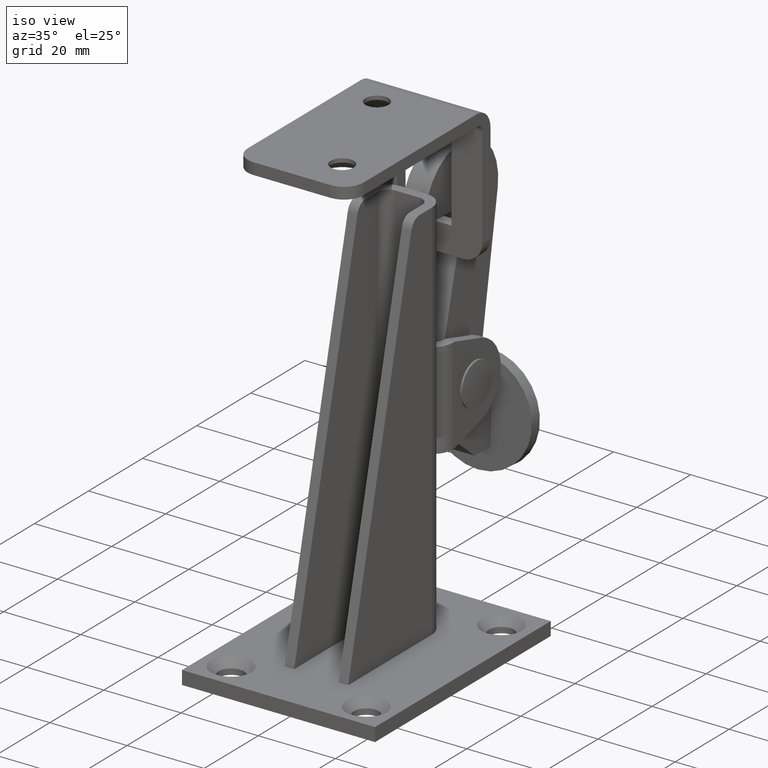
[diagram: clean part render]
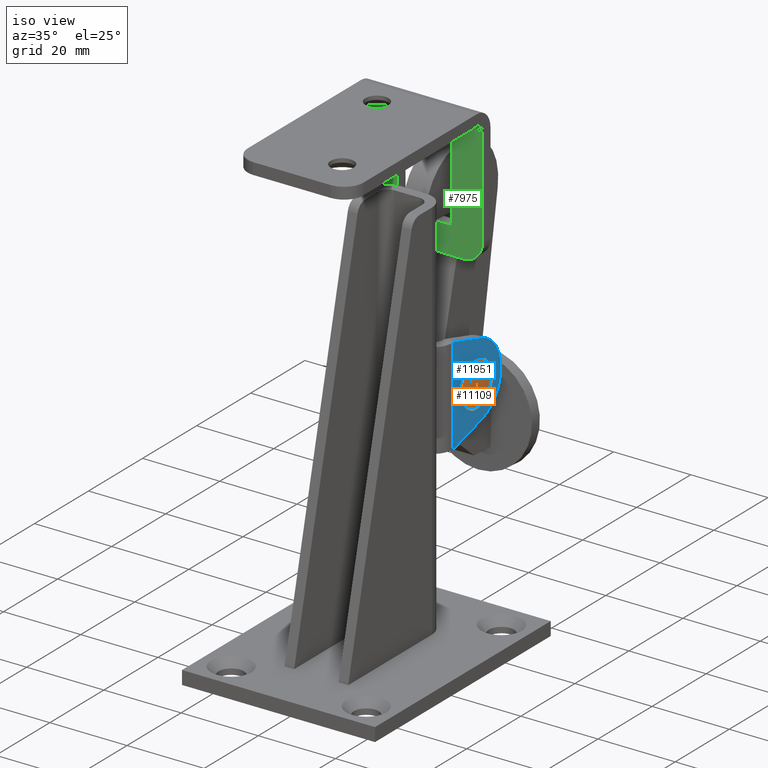
[diagram: same view with three faces highlighted in distinct colors, each labeled with its STEP entity id]
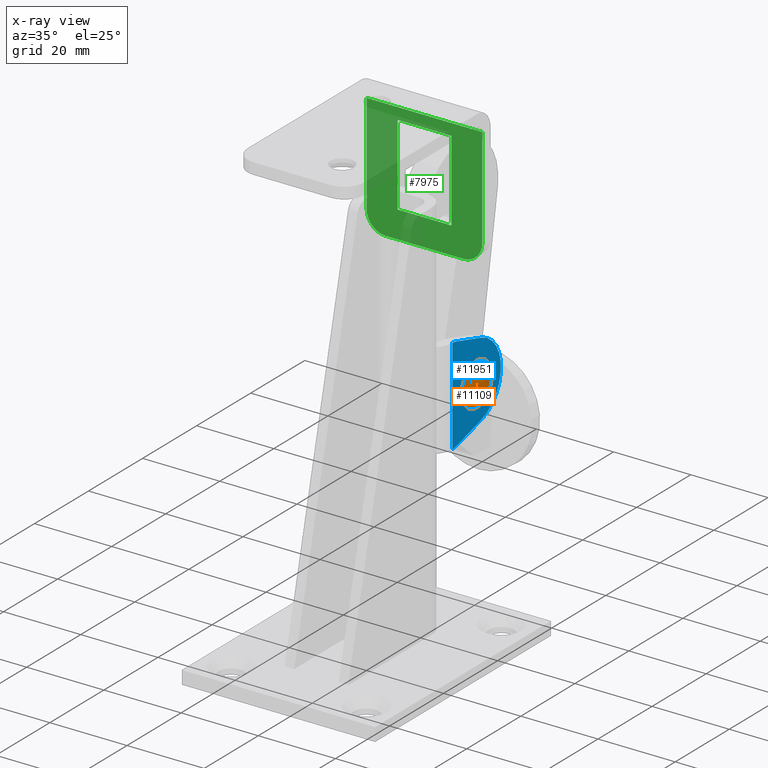
[diagram: x-ray of the same camera — body ghosted, the three highlighted faces saturated]
A machine part, iso view with three faces highlighted in distinct colors.
The next image is the same camera in x-ray (body ghosted, the three faces saturated) — at least one of them is partly hidden behind the body in this view.
Their STEP definitions:

[orange] entity #11109 — the highlighted spherical surface has radius 30.5 mm.
#1135 = ORIENTED_EDGE ( 'NONE', *, *, #9528, .F. ) ;
#1677 = DIRECTION ( 'NONE',  ( -0.0000000000000000000, 0.0000000000000000000, -1.000000000000000000 ) ) ;
#3157 = CARTESIAN_POINT ( 'NONE',  ( 7.249999999999999100, 0.0000000000000000000, 0.0000000000000000000 ) ) ;
#7045 = DIRECTION ( 'NONE',  ( 0.0000000000000000000, 1.000000000000000000, 0.0000000000000000000 ) ) ;
#7399 = DIRECTION ( 'NONE',  ( 0.0000000000000000000, 0.0000000000000000000, 1.000000000000000000 ) ) ;
#7737 = VERTEX_POINT ( 'NONE', #8880 ) ;
#7980 = AXIS2_PLACEMENT_3D ( 'NONE', #9278, #1677, #7045 ) ;
#8386 = DIRECTION ( 'NONE',  ( -1.000000000000000000, -0.0000000000000000000, -0.0000000000000000000 ) ) ;
#8880 = CARTESIAN_POINT ( 'NONE',  ( 7.249999999999999100, 0.0000000000000000000, 5.500000000000000000 ) ) ;
#9278 = CARTESIAN_POINT ( 'NONE',  ( -22.74999999999996800, 0.0000000000000000000, 0.0000000000000000000 ) ) ;
#9507 = AXIS2_PLACEMENT_3D ( 'NONE', #3157, #8386, #7399 ) ;
#9528 = EDGE_CURVE ( 'NONE', #7737, #7737, #12121, .T. ) ;
#9913 = EDGE_LOOP ( 'NONE', ( #1135 ) ) ;
#11109 = ADVANCED_FACE ( 'NONE', ( #11949 ), #13445, .T. ) ;
#11949 = FACE_OUTER_BOUND ( 'NONE', #9913, .T. ) ;
#12121 = CIRCLE ( 'NONE', #9507, 5.500000000000000000 ) ;
#13445 = SPHERICAL_SURFACE ( 'NONE', #7980, 30.49999999999996800 ) ;

[blue] entity #11951 — the highlighted planar face has unit normal (1, 0, 0).
#43 = ORIENTED_EDGE ( 'NONE', *, *, #9414, .F. ) ;
#112 = EDGE_LOOP ( 'NONE', ( #9873, #6386, #7028, #4673, #4239, #1696 ) ) ;
#246 = VERTEX_POINT ( 'NONE', #10996 ) ;
#470 = VERTEX_POINT ( 'NONE', #9786 ) ;
#626 = CARTESIAN_POINT ( 'NONE',  ( 6.500000000000002700, 22.50000000000002500, 62.50000000000000000 ) ) ;
#973 = LINE ( 'NONE', #9210, #11423 ) ;
#1289 = VECTOR ( 'NONE', #9716, 999.9999999999998900 ) ;
#1588 = AXIS2_PLACEMENT_3D ( 'NONE', #9444, #5279, #12738 ) ;
#1696 = ORIENTED_EDGE ( 'NONE', *, *, #9468, .F. ) ;
#1750 = CARTESIAN_POINT ( 'NONE',  ( 6.500000000000000900, 22.50000000000002500, 42.50000000000000000 ) ) ;
#2298 = EDGE_CURVE ( 'NONE', #3644, #9207, #12075, .T. ) ;
#2338 = EDGE_CURVE ( 'NONE', #8177, #3644, #4753, .T. ) ;
#2440 = DIRECTION ( 'NONE',  ( 0.0000000000000000000, 0.0000000000000000000, -1.000000000000000000 ) ) ;
#2451 = EDGE_CURVE ( 'NONE', #10683, #5339, #973, .T. ) ;
#2542 = CARTESIAN_POINT ( 'NONE',  ( 6.500000000000002700, 30.49999999999998600, 55.00000000000000700 ) ) ;
#2808 = DIRECTION ( 'NONE',  ( 0.0000000000000000000, 0.9611383383265909000, -0.2760671921811787000 ) ) ;
#3457 = FACE_BOUND ( 'NONE', #9524, .T. ) ;
#3626 = CIRCLE ( 'NONE', #1588, 10.00000000000000900 ) ;
#3644 = VERTEX_POINT ( 'NONE', #6331 ) ;
#4239 = ORIENTED_EDGE ( 'NONE', *, *, #2451, .F. ) ;
#4286 = CARTESIAN_POINT ( 'NONE',  ( 6.500000000000000000, 22.50000000000002500, 42.50000000000000000 ) ) ;
#4328 = PLANE ( 'NONE',  #9766 ) ;
#4673 = ORIENTED_EDGE ( 'NONE', *, *, #11832, .T. ) ;
#4753 = CIRCLE ( 'NONE', #12998, 5.000000000000011500 ) ;
#5279 = DIRECTION ( 'NONE',  ( 1.000000000000000000, 0.0000000000000000000, 0.0000000000000000000 ) ) ;
#5339 = VERTEX_POINT ( 'NONE', #7065 ) ;
#6331 = CARTESIAN_POINT ( 'NONE',  ( 6.500000000000002700, 23.88033596090592100, 42.69430830836705600 ) ) ;
#6386 = ORIENTED_EDGE ( 'NONE', *, *, #2338, .T. ) ;
#6443 = VECTOR ( 'NONE', #12234, 1000.000000000000000 ) ;
#6500 = DIRECTION ( 'NONE',  ( 1.000000000000000000, 0.0000000000000000000, 0.0000000000000000000 ) ) ;
#6758 = DIRECTION ( 'NONE',  ( 1.000000000000000000, 0.0000000000000000000, 0.0000000000000000000 ) ) ;
#7028 = ORIENTED_EDGE ( 'NONE', *, *, #2298, .T. ) ;
#7029 = DIRECTION ( 'NONE',  ( 0.0000000000000000000, 0.0000000000000000000, -1.000000000000000000 ) ) ;
#7065 = CARTESIAN_POINT ( 'NONE',  ( 6.500000000000002700, 33.26067192181177700, 64.61138338326591700 ) ) ;
#7825 = AXIS2_PLACEMENT_3D ( 'NONE', #2542, #6758, #12187 ) ;
#8049 = CARTESIAN_POINT ( 'NONE',  ( 6.500000000000002700, 22.50000000000002500, 42.50000000000000000 ) ) ;
#8177 = VERTEX_POINT ( 'NONE', #8049 ) ;
#9053 = CARTESIAN_POINT ( 'NONE',  ( 6.500000000000002700, 23.88033596090592400, 67.30569169163294400 ) ) ;
#9207 = VERTEX_POINT ( 'NONE', #13780 ) ;
#9210 = CARTESIAN_POINT ( 'NONE',  ( 6.500000000000000000, 29.18711120809602700, 65.78142979965694800 ) ) ;
#9414 = EDGE_CURVE ( 'NONE', #246, #246, #10460, .T. ) ;
#9444 = CARTESIAN_POINT ( 'NONE',  ( 6.500000000000002700, 30.49999999999998600, 55.00000000000000700 ) ) ;
#9468 = EDGE_CURVE ( 'NONE', #470, #10683, #12279, .T. ) ;
#9524 = EDGE_LOOP ( 'NONE', ( #43 ) ) ;
#9610 = LINE ( 'NONE', #1750, #6443 ) ;
#9667 = CARTESIAN_POINT ( 'NONE',  ( 6.500000000000002700, 22.50000000000002500, 47.50000000000001400 ) ) ;
#9716 = DIRECTION ( 'NONE',  ( -0.0000000000000000000, 0.9611383383265909000, 0.2760671921811787000 ) ) ;
#9766 = AXIS2_PLACEMENT_3D ( 'NONE', #4286, #6500, #12921 ) ;
#9786 = CARTESIAN_POINT ( 'NONE',  ( 6.500000000000002700, 22.50000000000002500, 67.50000000000000000 ) ) ;
#9873 = ORIENTED_EDGE ( 'NONE', *, *, #10701, .F. ) ;
#10460 = CIRCLE ( 'NONE', #7825, 3.000000000000002700 ) ;
#10483 = AXIS2_PLACEMENT_3D ( 'NONE', #626, #11351, #7029 ) ;
#10683 = VERTEX_POINT ( 'NONE', #9053 ) ;
#10701 = EDGE_CURVE ( 'NONE', #8177, #470, #9610, .T. ) ;
#10996 = CARTESIAN_POINT ( 'NONE',  ( 6.500000000000002700, 30.49999999999998600, 52.00000000000000700 ) ) ;
#11351 = DIRECTION ( 'NONE',  ( -1.000000000000000000, -0.0000000000000000000, -0.0000000000000000000 ) ) ;
#11423 = VECTOR ( 'NONE', #2808, 999.9999999999998900 ) ;
#11807 = DIRECTION ( 'NONE',  ( 1.000000000000000000, 0.0000000000000000000, 0.0000000000000000000 ) ) ;
#11832 = EDGE_CURVE ( 'NONE', #9207, #5339, #3626, .T. ) ;
#11951 = ADVANCED_FACE ( 'NONE', ( #3457, #12583 ), #4328, .T. ) ;
#12075 = LINE ( 'NONE', #12642, #1289 ) ;
#12187 = DIRECTION ( 'NONE',  ( 0.0000000000000000000, 0.0000000000000000000, -1.000000000000000000 ) ) ;
#12234 = DIRECTION ( 'NONE',  ( 0.0000000000000000000, 0.0000000000000000000, 1.000000000000000000 ) ) ;
#12279 = CIRCLE ( 'NONE', #10483, 5.000000000000004400 ) ;
#12583 = FACE_OUTER_BOUND ( 'NONE', #112, .T. ) ;
#12642 = CARTESIAN_POINT ( 'NONE',  ( 6.500000000000000000, 22.55364214910838800, 42.31324283537305300 ) ) ;
#12738 = DIRECTION ( 'NONE',  ( 0.0000000000000000000, 0.0000000000000000000, -1.000000000000000000 ) ) ;
#12921 = DIRECTION ( 'NONE',  ( 0.0000000000000000000, 0.0000000000000000000, -1.000000000000000000 ) ) ;
#12998 = AXIS2_PLACEMENT_3D ( 'NONE', #9667, #11807, #2440 ) ;
#13780 = CARTESIAN_POINT ( 'NONE',  ( 6.500000000000002700, 33.26067192181178500, 45.38861661673409000 ) ) ;

[green] entity #7975 — the highlighted planar face has unit normal (0, 1, 0).
#131 = DIRECTION ( 'NONE',  ( -0.0000000000000000000, 2.238352872228138700E-016, -1.000000000000000000 ) ) ;
#179 = VECTOR ( 'NONE', #6985, 1000.000000000000000 ) ;
#197 = DIRECTION ( 'NONE',  ( 0.0000000000000000000, -2.238352872228138700E-016, 1.000000000000000000 ) ) ;
#280 = VERTEX_POINT ( 'NONE', #9244 ) ;
#786 = LINE ( 'NONE', #6636, #4759 ) ;
#911 = LINE ( 'NONE', #7343, #2914 ) ;
#1072 = CARTESIAN_POINT ( 'NONE',  ( 15.00000000000000000, 48.99999999999999300, 12.99999999999999800 ) ) ;
#1307 = VECTOR ( 'NONE', #2077, 1000.000000000000000 ) ;
#1527 = ORIENTED_EDGE ( 'NONE', *, *, #13227, .T. ) ;
#1705 = CARTESIAN_POINT ( 'NONE',  ( -7.000000000000000900, 49.00000000000000000, 9.999999999999994700 ) ) ;
#1785 = VECTOR ( 'NONE', #8554, 1000.000000000000000 ) ;
#1846 = DIRECTION ( 'NONE',  ( 0.0000000000000000000, -1.000000000000000000, -2.238352872228138700E-016 ) ) ;
#2077 = DIRECTION ( 'NONE',  ( -1.000000000000000000, -0.0000000000000000000, -0.0000000000000000000 ) ) ;
#2222 = EDGE_CURVE ( 'NONE', #8023, #280, #13597, .T. ) ;
#2497 = CARTESIAN_POINT ( 'NONE',  ( 15.00000000000000000, 49.00000000000000000, -18.00000000000000400 ) ) ;
#2628 = EDGE_LOOP ( 'NONE', ( #11533, #1527, #3838, #10181, #12812, #4428 ) ) ;
#2673 = VECTOR ( 'NONE', #2767, 1000.000000000000000 ) ;
#2750 = EDGE_CURVE ( 'NONE', #8770, #7893, #8316, .T. ) ;
#2767 = DIRECTION ( 'NONE',  ( -1.000000000000000000, -0.0000000000000000000, -0.0000000000000000000 ) ) ;
#2914 = VECTOR ( 'NONE', #11611, 1000.000000000000000 ) ;
#3245 = CARTESIAN_POINT ( 'NONE',  ( -9.999999999999998200, 49.00000000000000000, -18.00000000000000400 ) ) ;
#3325 = DIRECTION ( 'NONE',  ( 1.040834085586084100E-015, 0.0000000000000000000, 1.000000000000000000 ) ) ;
#3344 = LINE ( 'NONE', #4582, #5460 ) ;
#3620 = AXIS2_PLACEMENT_3D ( 'NONE', #10271, #1846, #11357 ) ;
#3744 = CARTESIAN_POINT ( 'NONE',  ( 6.999999999999996400, 49.00000000000000000, -10.99999999999999600 ) ) ;
#3754 = EDGE_CURVE ( 'NONE', #11823, #10481, #911, .T. ) ;
#3838 = ORIENTED_EDGE ( 'NONE', *, *, #3882, .F. ) ;
#3882 = EDGE_CURVE ( 'NONE', #9424, #12813, #3344, .T. ) ;
#4179 = CARTESIAN_POINT ( 'NONE',  ( -15.00000000000000000, 49.00000000000000000, -12.99999999999999800 ) ) ;
#4428 = ORIENTED_EDGE ( 'NONE', *, *, #9705, .T. ) ;
#4527 = CARTESIAN_POINT ( 'NONE',  ( -7.000000000000000900, 49.00000000000000000, 9.999999999999994700 ) ) ;
#4582 = CARTESIAN_POINT ( 'NONE',  ( 15.00000000000000000, 49.00000000000000000, -18.00000000000000400 ) ) ;
#4648 = FACE_OUTER_BOUND ( 'NONE', #2628, .T. ) ;
#4759 = VECTOR ( 'NONE', #5585, 1000.000000000000000 ) ;
#5309 = FACE_BOUND ( 'NONE', #12589, .T. ) ;
#5460 = VECTOR ( 'NONE', #131, 1000.000000000000000 ) ;
#5585 = DIRECTION ( 'NONE',  ( 1.239088197126290800E-016, 0.0000000000000000000, 1.000000000000000000 ) ) ;
#5734 = ORIENTED_EDGE ( 'NONE', *, *, #8626, .T. ) ;
#5785 = CIRCLE ( 'NONE', #11911, 5.000000000000000900 ) ;
#6147 = LINE ( 'NONE', #12291, #10123 ) ;
#6372 = CARTESIAN_POINT ( 'NONE',  ( -9.999999999999998200, 49.00000000000000000, -12.99999999999999800 ) ) ;
#6468 = EDGE_CURVE ( 'NONE', #6472, #6689, #11154, .T. ) ;
#6472 = VERTEX_POINT ( 'NONE', #4527 ) ;
#6549 = AXIS2_PLACEMENT_3D ( 'NONE', #2497, #12003, #197 ) ;
#6636 = CARTESIAN_POINT ( 'NONE',  ( -7.000000000000003600, 49.00000000000000000, -10.99999999999999600 ) ) ;
#6689 = VERTEX_POINT ( 'NONE', #7262 ) ;
#6985 = DIRECTION ( 'NONE',  ( 1.000000000000000000, 0.0000000000000000000, 0.0000000000000000000 ) ) ;
#7262 = CARTESIAN_POINT ( 'NONE',  ( 7.000000000000000900, 49.00000000000000000, 9.999999999999994700 ) ) ;
#7343 = CARTESIAN_POINT ( 'NONE',  ( -15.00000000000000000, 49.00000000000000000, -18.00000000000000400 ) ) ;
#7488 = DIRECTION ( 'NONE',  ( 0.0000000000000000000, -1.000000000000000000, -2.238352872228138700E-016 ) ) ;
#7893 = VERTEX_POINT ( 'NONE', #3245 ) ;
#7975 = ADVANCED_FACE ( 'NONE', ( #5309, #4648 ), #10782, .F. ) ;
#8023 = VERTEX_POINT ( 'NONE', #3744 ) ;
#8224 = CARTESIAN_POINT ( 'NONE',  ( 9.999999999999998200, 49.00000000000000000, -18.00000000000000400 ) ) ;
#8316 = LINE ( 'NONE', #12396, #2673 ) ;
#8554 = DIRECTION ( 'NONE',  ( -1.000000000000000000, -0.0000000000000000000, -0.0000000000000000000 ) ) ;
#8626 = EDGE_CURVE ( 'NONE', #6689, #8023, #6147, .T. ) ;
#8764 = CIRCLE ( 'NONE', #3620, 5.000000000000000900 ) ;
#8770 = VERTEX_POINT ( 'NONE', #8224 ) ;
#9244 = CARTESIAN_POINT ( 'NONE',  ( -7.000000000000002700, 49.00000000000000000, -10.99999999999999600 ) ) ;
#9424 = VERTEX_POINT ( 'NONE', #12051 ) ;
#9705 = EDGE_CURVE ( 'NONE', #10481, #7893, #5785, .T. ) ;
#10123 = VECTOR ( 'NONE', #10189, 1000.000000000000000 ) ;
#10153 = ORIENTED_EDGE ( 'NONE', *, *, #6468, .T. ) ;
#10181 = ORIENTED_EDGE ( 'NONE', *, *, #12621, .T. ) ;
#10189 = DIRECTION ( 'NONE',  ( -2.065146995210484900E-016, -0.0000000000000000000, -1.000000000000000000 ) ) ;
#10271 = CARTESIAN_POINT ( 'NONE',  ( 9.999999999999998200, 49.00000000000000000, -12.99999999999999800 ) ) ;
#10412 = LINE ( 'NONE', #1072, #1785 ) ;
#10481 = VERTEX_POINT ( 'NONE', #4179 ) ;
#10782 = PLANE ( 'NONE',  #6549 ) ;
#10968 = ORIENTED_EDGE ( 'NONE', *, *, #2222, .T. ) ;
#11154 = LINE ( 'NONE', #1705, #179 ) ;
#11227 = ORIENTED_EDGE ( 'NONE', *, *, #12265, .T. ) ;
#11357 = DIRECTION ( 'NONE',  ( 0.0000000000000000000, 0.0000000000000000000, 1.000000000000000000 ) ) ;
#11533 = ORIENTED_EDGE ( 'NONE', *, *, #2750, .F. ) ;
#11611 = DIRECTION ( 'NONE',  ( -0.0000000000000000000, 2.238352872228138700E-016, -1.000000000000000000 ) ) ;
#11823 = VERTEX_POINT ( 'NONE', #12598 ) ;
#11911 = AXIS2_PLACEMENT_3D ( 'NONE', #6372, #7488, #3325 ) ;
#12003 = DIRECTION ( 'NONE',  ( -0.0000000000000000000, 1.000000000000000000, 2.238352872228138700E-016 ) ) ;
#12051 = CARTESIAN_POINT ( 'NONE',  ( 15.00000000000000000, 48.99999999999999300, 12.99999999999999800 ) ) ;
#12265 = EDGE_CURVE ( 'NONE', #280, #6472, #786, .T. ) ;
#12291 = CARTESIAN_POINT ( 'NONE',  ( 6.999999999999996400, 49.00000000000000000, -10.99999999999999600 ) ) ;
#12396 = CARTESIAN_POINT ( 'NONE',  ( 15.00000000000000000, 49.00000000000000000, -18.00000000000000400 ) ) ;
#12548 = CARTESIAN_POINT ( 'NONE',  ( -7.000000000000003600, 49.00000000000000000, -10.99999999999999600 ) ) ;
#12589 = EDGE_LOOP ( 'NONE', ( #10153, #5734, #10968, #11227 ) ) ;
#12598 = CARTESIAN_POINT ( 'NONE',  ( -15.00000000000000000, 48.99999999999999300, 12.99999999999999800 ) ) ;
#12621 = EDGE_CURVE ( 'NONE', #9424, #11823, #10412, .T. ) ;
#12812 = ORIENTED_EDGE ( 'NONE', *, *, #3754, .T. ) ;
#12813 = VERTEX_POINT ( 'NONE', #13418 ) ;
#13227 = EDGE_CURVE ( 'NONE', #8770, #12813, #8764, .T. ) ;
#13418 = CARTESIAN_POINT ( 'NONE',  ( 15.00000000000000000, 49.00000000000000000, -12.99999999999999800 ) ) ;
#13597 = LINE ( 'NONE', #12548, #1307 ) ;